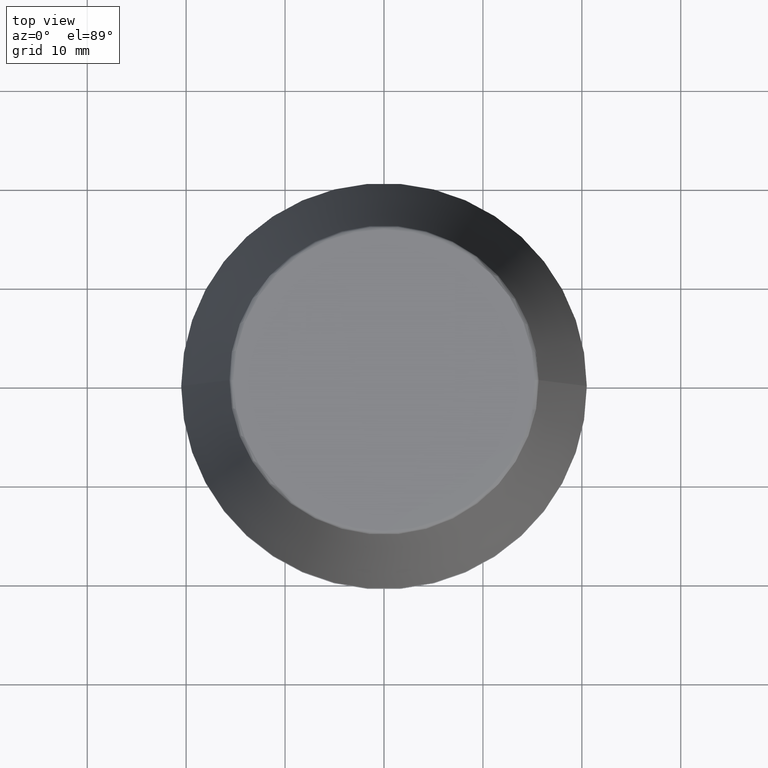
[diagram: clean part render]
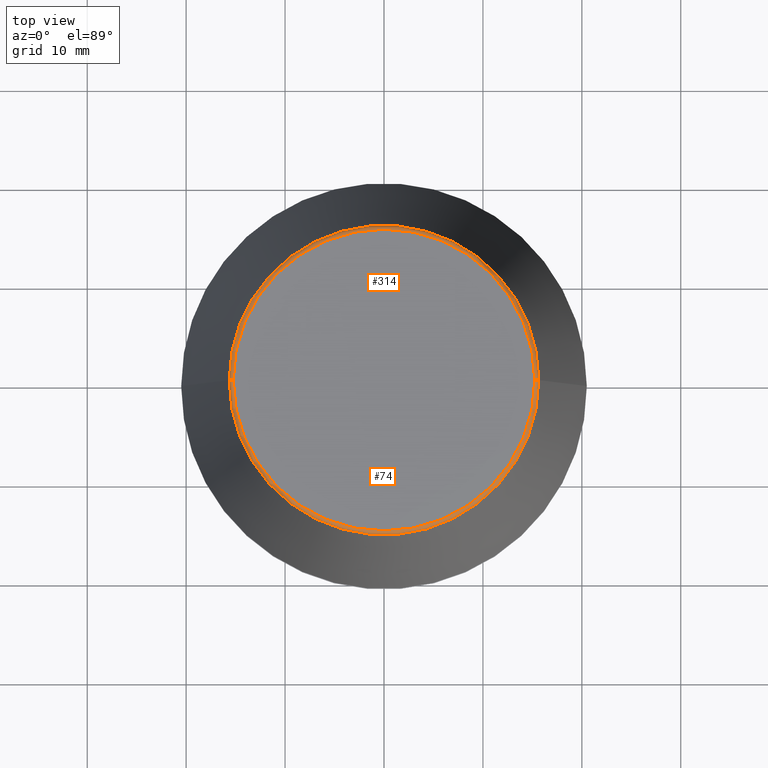
[diagram: same view with one multi-face feature highlighted, each face labeled with its STEP entity id]
A machine part, top view. The highlighted faces form ONE feature: a constant-radius fillet chain: 2 tangent blend faces with common blend radius 0.4 mm. The faces share edges in the B-rep.
Their STEP definitions:
[1] entity #314 (Torus):
#3 = CIRCLE ( 'NONE', #266, 0.3999999999999975800 ) ;
#39 = CARTESIAN_POINT ( 'NONE',  ( 0.0000000000000000000, 0.0000000000000000000, 45.65566924038402900 ) ) ;
#57 = AXIS2_PLACEMENT_3D ( 'NONE', #290, #125, #324 ) ;
#59 = CARTESIAN_POINT ( 'NONE',  ( 15.24773554530077600, 0.0000000000000000000, 45.60000000000000100 ) ) ;
#61 = ORIENTED_EDGE ( 'NONE', *, *, #206, .T. ) ;
#66 = EDGE_CURVE ( 'NONE', #146, #302, #201, .T. ) ;
#70 = VERTEX_POINT ( 'NONE', #188 ) ;
#79 = DIRECTION ( 'NONE',  ( -0.0000000000000000000, -0.0000000000000000000, 1.000000000000000000 ) ) ;
#86 = ORIENTED_EDGE ( 'NONE', *, *, #66, .F. ) ;
#96 = DIRECTION ( 'NONE',  ( 0.0000000000000000000, 0.0000000000000000000, -1.000000000000000000 ) ) ;
#125 = DIRECTION ( 'NONE',  ( 1.224646799147353200E-016, 1.000000000000000000, 0.0000000000000000000 ) ) ;
#127 = AXIS2_PLACEMENT_3D ( 'NONE', #39, #128, #326 ) ;
#128 = DIRECTION ( 'NONE',  ( -0.0000000000000000000, -0.0000000000000000000, 1.000000000000000000 ) ) ;
#130 = FACE_OUTER_BOUND ( 'NONE', #151, .T. ) ;
#134 = VERTEX_POINT ( 'NONE', #239 ) ;
#143 = EDGE_CURVE ( 'NONE', #134, #302, #320, .T. ) ;
#146 = VERTEX_POINT ( 'NONE', #383 ) ;
#149 = ORIENTED_EDGE ( 'NONE', *, *, #384, .F. ) ;
#151 = EDGE_LOOP ( 'NONE', ( #61, #248, #86, #149 ) ) ;
#183 = TOROIDAL_SURFACE ( 'NONE', #280, 15.24773554530077600, 0.3999999999999991900 ) ;
#188 = CARTESIAN_POINT ( 'NONE',  ( 15.64384277279740400, 2.213191991290356800E-015, 45.65566924038402900 ) ) ;
#192 = CARTESIAN_POINT ( 'NONE',  ( -15.24773554530077600, 1.891563625393435400E-015, 46.00000000000000000 ) ) ;
#194 = DIRECTION ( 'NONE',  ( 1.000000000000000000, 0.0000000000000000000, 0.0000000000000000000 ) ) ;
#201 = CIRCLE ( 'NONE', #282, 15.24773554530077600 ) ;
#206 = EDGE_CURVE ( 'NONE', #70, #134, #306, .T. ) ;
#239 = CARTESIAN_POINT ( 'NONE',  ( -15.64384277279740400, 0.0000000000000000000, 45.65566924038402900 ) ) ;
#248 = ORIENTED_EDGE ( 'NONE', *, *, #143, .T. ) ;
#256 = DIRECTION ( 'NONE',  ( 1.000000000000000000, 0.0000000000000000000, 0.0000000000000000000 ) ) ;
#266 = AXIS2_PLACEMENT_3D ( 'NONE', #59, #267, #96 ) ;
#267 = DIRECTION ( 'NONE',  ( 0.0000000000000000000, -1.000000000000000000, 0.0000000000000000000 ) ) ;
#280 = AXIS2_PLACEMENT_3D ( 'NONE', #330, #358, #194 ) ;
#281 = CARTESIAN_POINT ( 'NONE',  ( 0.0000000000000000000, 0.0000000000000000000, 46.00000000000000000 ) ) ;
#282 = AXIS2_PLACEMENT_3D ( 'NONE', #281, #79, #256 ) ;
#290 = CARTESIAN_POINT ( 'NONE',  ( -15.24773554530077600, 1.867309052979791600E-015, 45.60000000000000100 ) ) ;
#302 = VERTEX_POINT ( 'NONE', #192 ) ;
#306 = CIRCLE ( 'NONE', #127, 15.64384277279740400 ) ;
#314 = ADVANCED_FACE ( 'NONE', ( #130 ), #183, .T. ) ;
#320 = CIRCLE ( 'NONE', #57, 0.3999999999999975800 ) ;
#324 = DIRECTION ( 'NONE',  ( -1.000000000000000000, 1.224646799147353900E-016, 0.0000000000000000000 ) ) ;
#326 = DIRECTION ( 'NONE',  ( 1.000000000000000000, 0.0000000000000000000, 0.0000000000000000000 ) ) ;
#330 = CARTESIAN_POINT ( 'NONE',  ( 0.0000000000000000000, 0.0000000000000000000, 45.60000000000000100 ) ) ;
#358 = DIRECTION ( 'NONE',  ( -0.0000000000000000000, -0.0000000000000000000, 1.000000000000000000 ) ) ;
#383 = CARTESIAN_POINT ( 'NONE',  ( 15.24773554530077600, 0.0000000000000000000, 46.00000000000000000 ) ) ;
#384 = EDGE_CURVE ( 'NONE', #70, #146, #3, .T. ) ;
[2] entity #74 (Torus):
#3 = CIRCLE ( 'NONE', #266, 0.3999999999999975800 ) ;
#57 = AXIS2_PLACEMENT_3D ( 'NONE', #290, #125, #324 ) ;
#59 = CARTESIAN_POINT ( 'NONE',  ( 15.24773554530077600, 0.0000000000000000000, 45.60000000000000100 ) ) ;
#70 = VERTEX_POINT ( 'NONE', #188 ) ;
#74 = ADVANCED_FACE ( 'NONE', ( #349 ), #367, .T. ) ;
#96 = DIRECTION ( 'NONE',  ( 0.0000000000000000000, 0.0000000000000000000, -1.000000000000000000 ) ) ;
#106 = ORIENTED_EDGE ( 'NONE', *, *, #143, .F. ) ;
#114 = EDGE_LOOP ( 'NONE', ( #106, #185, #376, #339 ) ) ;
#125 = DIRECTION ( 'NONE',  ( 1.224646799147353200E-016, 1.000000000000000000, 0.0000000000000000000 ) ) ;
#129 = DIRECTION ( 'NONE',  ( -0.0000000000000000000, -0.0000000000000000000, 1.000000000000000000 ) ) ;
#132 = CARTESIAN_POINT ( 'NONE',  ( 0.0000000000000000000, 0.0000000000000000000, 46.00000000000000000 ) ) ;
#134 = VERTEX_POINT ( 'NONE', #239 ) ;
#143 = EDGE_CURVE ( 'NONE', #134, #302, #320, .T. ) ;
#146 = VERTEX_POINT ( 'NONE', #383 ) ;
#169 = DIRECTION ( 'NONE',  ( 1.000000000000000000, 0.0000000000000000000, 0.0000000000000000000 ) ) ;
#185 = ORIENTED_EDGE ( 'NONE', *, *, #249, .T. ) ;
#188 = CARTESIAN_POINT ( 'NONE',  ( 15.64384277279740400, 2.213191991290356800E-015, 45.65566924038402900 ) ) ;
#192 = CARTESIAN_POINT ( 'NONE',  ( -15.24773554530077600, 1.891563625393435400E-015, 46.00000000000000000 ) ) ;
#218 = AXIS2_PLACEMENT_3D ( 'NONE', #132, #332, #169 ) ;
#235 = DIRECTION ( 'NONE',  ( -0.0000000000000000000, -0.0000000000000000000, 1.000000000000000000 ) ) ;
#239 = CARTESIAN_POINT ( 'NONE',  ( -15.64384277279740400, 0.0000000000000000000, 45.65566924038402900 ) ) ;
#249 = EDGE_CURVE ( 'NONE', #134, #70, #335, .T. ) ;
#266 = AXIS2_PLACEMENT_3D ( 'NONE', #59, #267, #96 ) ;
#267 = DIRECTION ( 'NONE',  ( 0.0000000000000000000, -1.000000000000000000, 0.0000000000000000000 ) ) ;
#290 = CARTESIAN_POINT ( 'NONE',  ( -15.24773554530077600, 1.867309052979791600E-015, 45.60000000000000100 ) ) ;
#293 = CARTESIAN_POINT ( 'NONE',  ( 0.0000000000000000000, 0.0000000000000000000, 45.65566924038402900 ) ) ;
#302 = VERTEX_POINT ( 'NONE', #192 ) ;
#320 = CIRCLE ( 'NONE', #57, 0.3999999999999975800 ) ;
#324 = DIRECTION ( 'NONE',  ( -1.000000000000000000, 1.224646799147353900E-016, 0.0000000000000000000 ) ) ;
#329 = DIRECTION ( 'NONE',  ( 1.000000000000000000, 0.0000000000000000000, 0.0000000000000000000 ) ) ;
#331 = AXIS2_PLACEMENT_3D ( 'NONE', #293, #129, #329 ) ;
#332 = DIRECTION ( 'NONE',  ( -0.0000000000000000000, -0.0000000000000000000, 1.000000000000000000 ) ) ;
#335 = CIRCLE ( 'NONE', #331, 15.64384277279740400 ) ;
#339 = ORIENTED_EDGE ( 'NONE', *, *, #359, .F. ) ;
#344 = DIRECTION ( 'NONE',  ( 1.000000000000000000, 0.0000000000000000000, 0.0000000000000000000 ) ) ;
#349 = FACE_OUTER_BOUND ( 'NONE', #114, .T. ) ;
#359 = EDGE_CURVE ( 'NONE', #302, #146, #387, .T. ) ;
#365 = CARTESIAN_POINT ( 'NONE',  ( 0.0000000000000000000, 0.0000000000000000000, 45.60000000000000100 ) ) ;
#367 = TOROIDAL_SURFACE ( 'NONE', #375, 15.24773554530077600, 0.3999999999999991900 ) ;
#375 = AXIS2_PLACEMENT_3D ( 'NONE', #365, #235, #344 ) ;
#376 = ORIENTED_EDGE ( 'NONE', *, *, #384, .T. ) ;
#383 = CARTESIAN_POINT ( 'NONE',  ( 15.24773554530077600, 0.0000000000000000000, 46.00000000000000000 ) ) ;
#384 = EDGE_CURVE ( 'NONE', #70, #146, #3, .T. ) ;
#387 = CIRCLE ( 'NONE', #218, 15.24773554530077600 ) ;